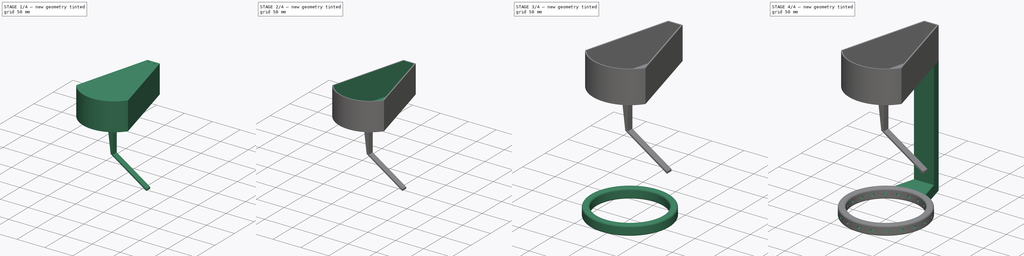
[diagram: build sequence overview — one tinted view per stage of 4, left to right]
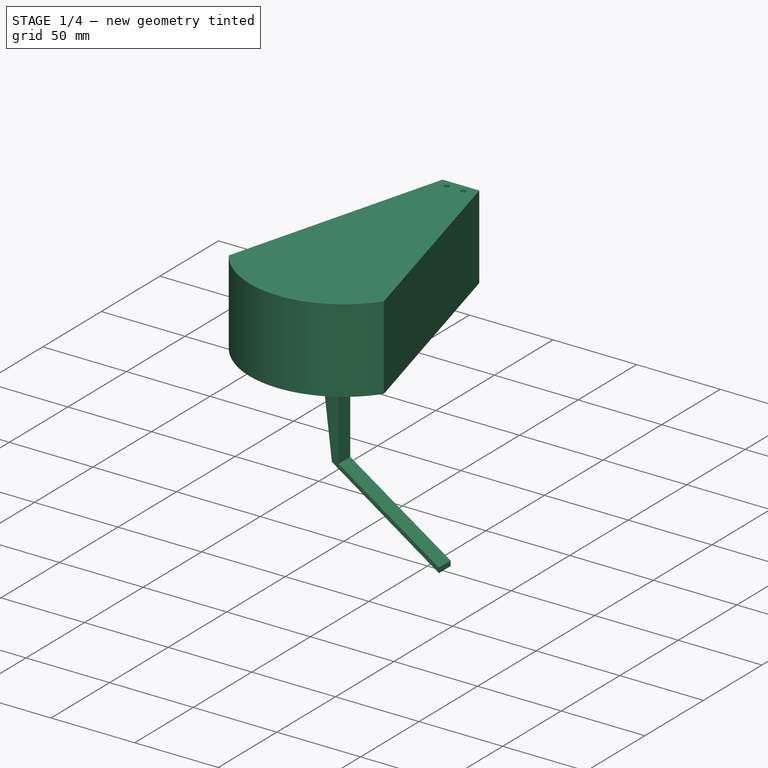
[diagram: stage 1 of 4 — iso view after this stage's code; geometry added in this stage tinted green]
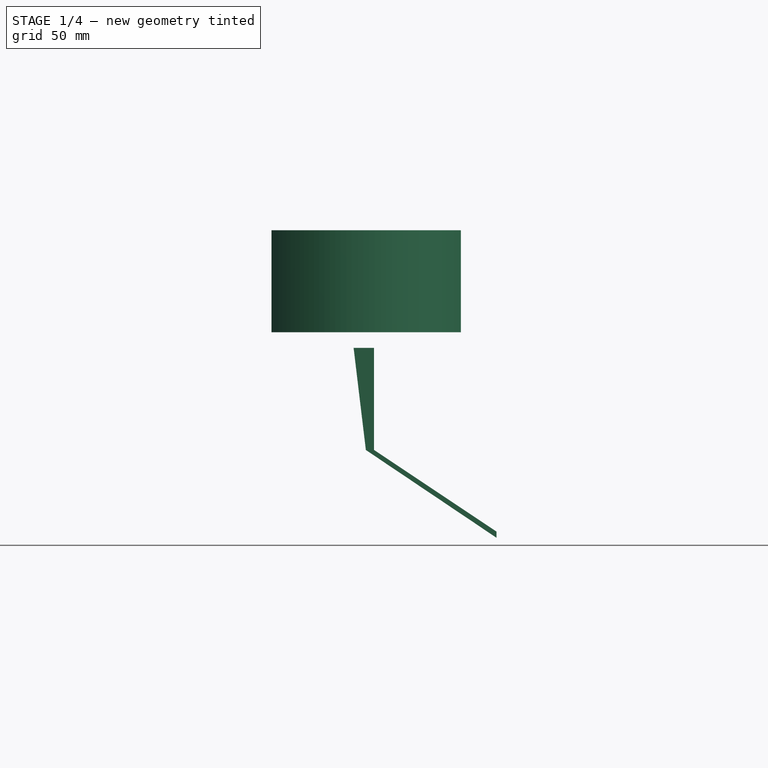
[diagram: stage 1 of 4 — front view after this stage's code; geometry added in this stage tinted green]
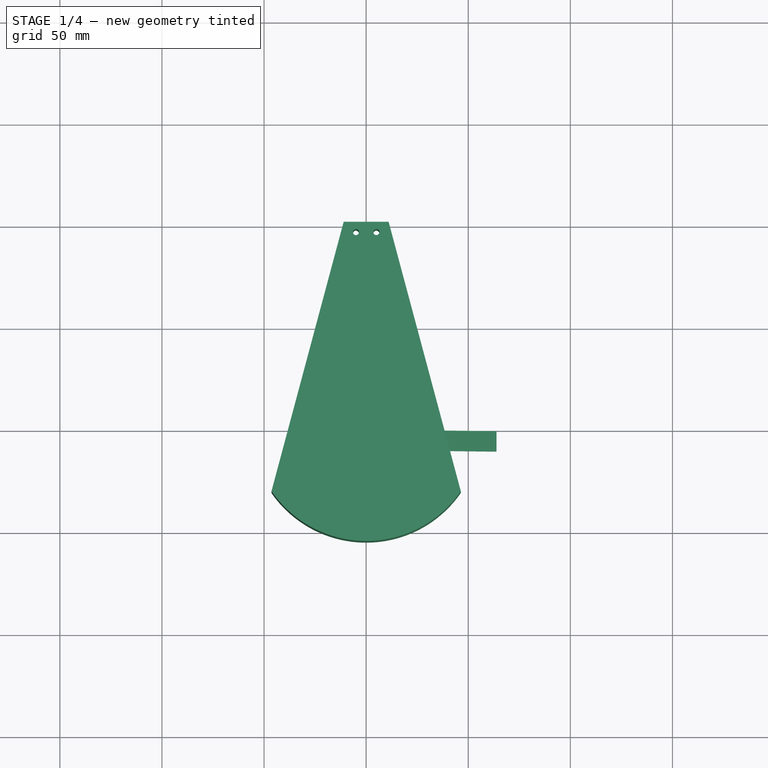
[diagram: stage 1 of 4 — top view after this stage's code; geometry added in this stage tinted green]
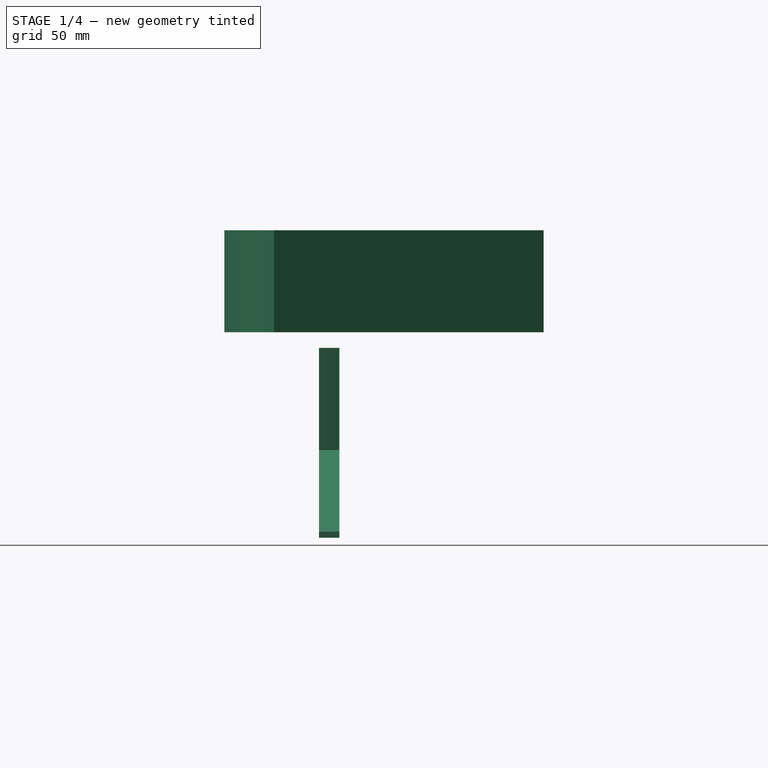
[diagram: stage 1 of 4 — right view after this stage's code; geometry added in this stage tinted green]
FCSTD DOCUMENT  (FreeCAD 0.19R24366 (Git))
Label: Singing Bowl Automata
License: All rights reserved
LicenseURL: http://en.wikipedia.org/wiki/All_rights_reserved
objects: Sketcher::SketchObject×12, PartDesign::Pocket×6, PartDesign::Pad×5, PartDesign::Body×3, PartDesign::Fillet×2, PartDesign::PolarPattern×1
note: 42 computed .brp shape members not serialized (recipe doc carries the construction recipe); baked Part::Feature solids carry a one-line shape summary decoded from their .brp

FEATURE [Sketcher::SketchObject] Sketch004
  FullyConstrained = true
  MapMode = 5
  Placement = pos=(0,0,180) rot=(0,0,1;0rad)
  Support = -> [Pad002]
FEATURE [PartDesign::Body] Body  label="Body Bottom"
  Group = -> [Sketch,Pad,Fillet,Fillet001,Sketch001,Pocket,PolarPattern,Sketch002,Pad001,Sketch003,Pad002,Sketch004]
  Origin = -> Origin
  Tip = -> Pad002
FEATURE [Sketcher::SketchObject] Sketch005  label="outer layer"
  AttachmentOffset = pos=(0,0,180) rot=(0,0,1;0rad)
  FullyConstrained = false
  MapMode = 5
  Placement = pos=(0,0,180) rot=(0,0,1;0rad)
  Support = -> [XY_Plane001]
  sketch-geometry (7):
    g0: GeomPoint X=-11 Y=100 Z=0
    g1: GeomPoint X=11 Y=100 Z=0
    g2: GeomPoint X=0 Y=100 Z=0
    g3: LineSegment StartX=-11 StartY=100 StartZ=0 EndX=-46.3693 EndY=-32 EndZ=0
    g4: LineSegment StartX=46.3693 StartY=-32 StartZ=0 EndX=11 EndY=100 EndZ=0
    g5: LineSegment StartX=11 StartY=100 StartZ=0 EndX=-11 EndY=100 EndZ=0
    g6: ArcOfCircle CenterX=0 CenterY=0 CenterZ=0 NormalX=0 NormalY=0 NormalZ=1 AngleXU=0 Radius=56.3393 StartAngle=3.74565 EndAngle=5.67913
  constraints (15):
    c: PointOnObject(g2,g-2)
    c: Coincident(g3,g0)
    c: Coincident(g4,g1)
    c: Coincident(g4,g5)
    c: Coincident(g5,g3)
    c: Horizontal(g5)
    c: Angle(g3,g5) = 1.8326
    c: Angle(g5,g4) = 1.8326
    c: DistanceX(g5,g5) = 22
    c: DistanceY(g-1,g3) = 100
    c: Coincident(g6,g-1)
    c: Coincident(g6,g3)
    c: DistanceY(g3,g3) = 132
    c: DistanceY(g4,g4) = 132
    c: Coincident(g4,g6)
FEATURE [PartDesign::Pad] Pad003
  Direction = (1,1,1)
  Length = 50
  Length2 = 100
  Profile = -> Sketch005
  Type = 0
FEATURE [Sketcher::SketchObject] Sketch006  label="back screw holes"
  FullyConstrained = false
  MapMode = 5
  Support = -> [XY_Plane001]
  sketch-geometry (2):
    g0: Circle CenterX=-5 CenterY=94.9671 CenterZ=0 NormalX=0 NormalY=0 NormalZ=1 AngleXU=0 Radius=1.5
    g1: Circle CenterX=5 CenterY=94.9671 CenterZ=0 NormalX=0 NormalY=0 NormalZ=1 AngleXU=0 Radius=1.5
  constraints (5):
    c: Radius(g0) = 1.5
    c: Radius(g1) = 1.5
    c: Horizontal(g0,g1)
    c: DistanceX(g0,g1) = 10
    c: DistanceX(g0,g-1) = 5
FEATURE [PartDesign::Pocket] Pocket001
  BaseFeature = -> Pad003
  Length = 5
  Length2 = 100
  Profile = -> Sketch006
  Reversed = true
  Type = 1
FEATURE [PartDesign::Body] Body001  label="Body Top"
  Group = -> [Sketch005,Pad003,Sketch006,Pocket001,Sketch007,Pocket002,Sketch008,Pocket003,Sketch009,Pocket004]
  Origin = -> Origin001
  Tip = -> Pocket004
FEATURE [Sketcher::SketchObject] Sketch010
  FullyConstrained = false
  MapMode = 5
  Placement = pos=(0,0,0) rot=(1,0,0;1.5708rad)
  Support = -> [XZ_Plane002]
  sketch-geometry (7):
    g0: GeomPoint X=3.86119 Y=172.366 Z=0
    g1: LineSegment StartX=3.86119 StartY=172.366 StartZ=0 EndX=3.86119 EndY=122.366 EndZ=0
    g2: LineSegment StartX=3.86119 StartY=122.366 StartZ=0 EndX=63.8612 EndY=82.3655 EndZ=0
    g3: LineSegment StartX=3.86119 StartY=172.366 StartZ=0 EndX=-6.13881 EndY=172.366 EndZ=0
    g4: LineSegment StartX=-6.13881 StartY=172.366 StartZ=0 EndX=-0.138805 EndY=122.366 EndZ=0
    g5: LineSegment StartX=-0.138805 StartY=122.366 StartZ=0 EndX=63.8612 EndY=79.3655 EndZ=0
    g6: LineSegment StartX=63.8612 StartY=79.3655 StartZ=0 EndX=63.8612 EndY=82.3655 EndZ=0
  constraints (17):
    c: Coincident(g1,g0)
    c: Vertical(g1)
    c: Coincident(g1,g2)
    c: DistanceY(g1,g1) = 50
    c: DistanceY(g2,g1) = 40
    c: DistanceX(g1,g2) = 60
    c: Coincident(g1,g3)
    c: Horizontal(g3)
    c: Coincident(g3,g4)
    c: Coincident(g4,g5)
    c: Coincident(g6,g5)
    c: Coincident(g6,g2)
    c: Vertical(g6)
    c: Horizontal(g4,g1)
    c: DistanceX(g3,g3) = 10
    c: DistanceY(g6,g6) = 3
    c: DistanceX(g4,g1) = 4
FEATURE [PartDesign::Pad] Pad004
  Direction = (1,1,1)
  Length = 10
  Length2 = 100
  Placement = pos=(0,0,0) rot=(1,0,0;1.5708rad)
  Profile = -> Sketch010
  Type = 0
FEATURE [Sketcher::SketchObject] Sketch011
  AttachmentOffset = pos=(0,-5,0) rot=(0,0,1;0rad)
  FullyConstrained = true
  MapMode = 5
  Placement = pos=(0,-5,0) rot=(0,0,1;0rad)
  Support = -> [XY_Plane002]
  sketch-geometry (1):
    g0: Circle CenterX=0 CenterY=0 CenterZ=0 NormalX=0 NormalY=0 NormalZ=1 AngleXU=0 Radius=3
  constraints (2):
    c: Coincident(g0,g-1)
    c: Radius(g0) = 3
FEATURE [PartDesign::Pocket] Pocket005
  BaseFeature = -> Pad004
  Length = 5
  Length2 = 100
  Placement = pos=(0,0,0) rot=(1,0,0;1.5708rad)
  Profile = -> Sketch011
  Reversed = true
  Type = 1
FEATURE [PartDesign::Body] Body002
  Group = -> [Sketch010,Pad004,Sketch011,Pocket005]
  Origin = -> Origin002
  Tip = -> Pocket005
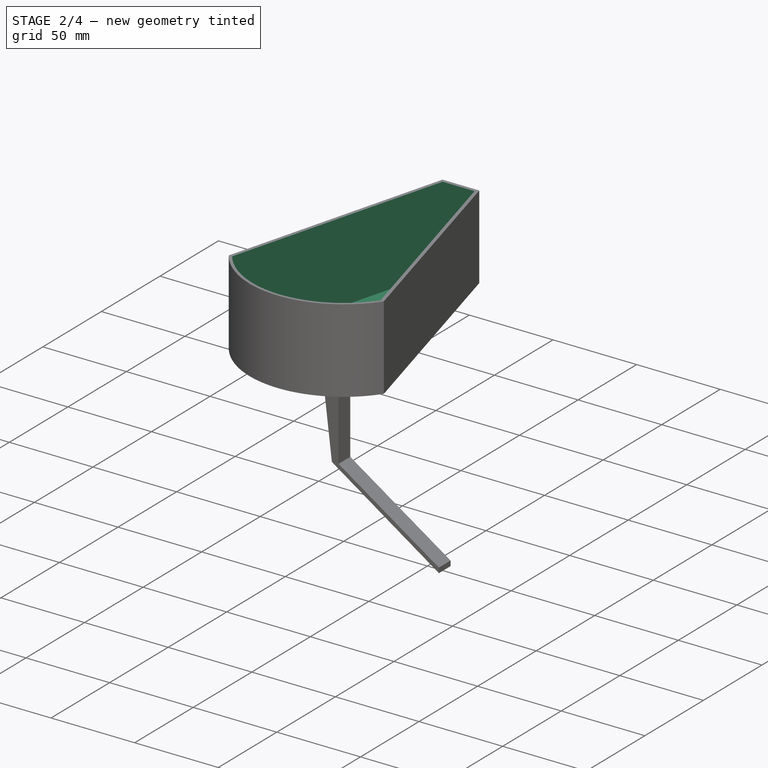
[diagram: stage 2 of 4 — iso view after this stage's code; geometry added in this stage tinted green]
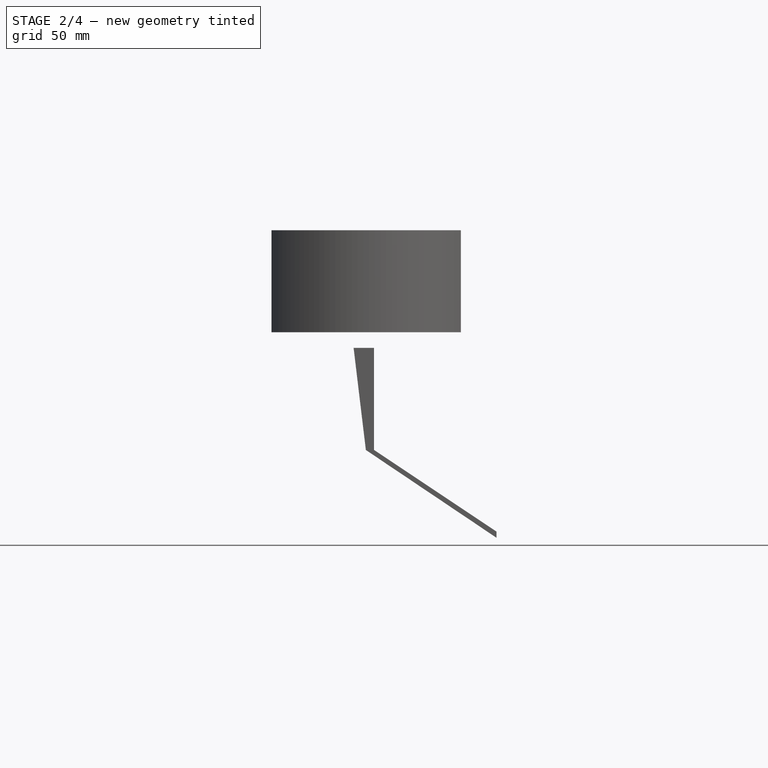
[diagram: stage 2 of 4 — front view after this stage's code; geometry added in this stage tinted green]
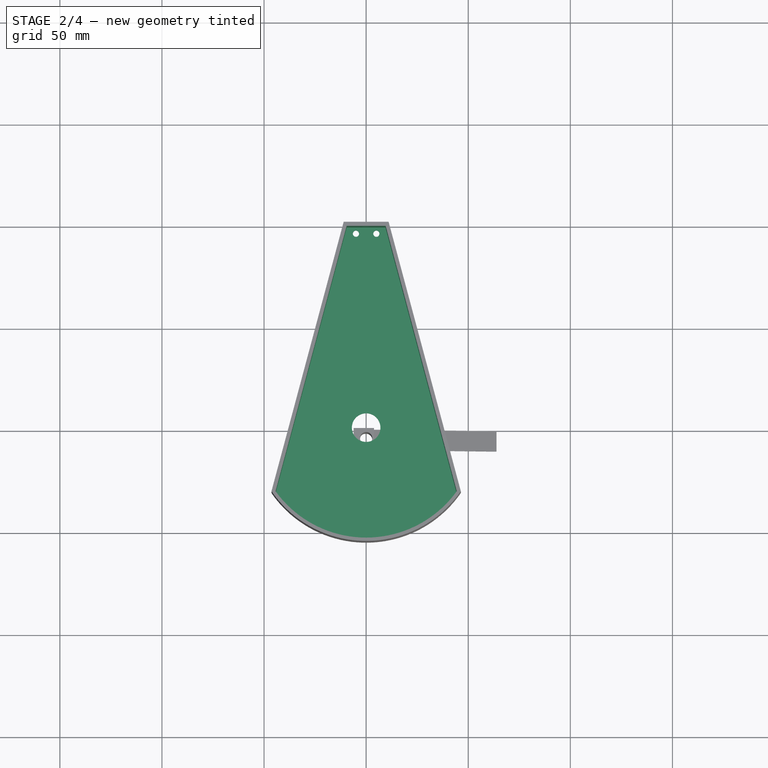
[diagram: stage 2 of 4 — top view after this stage's code; geometry added in this stage tinted green]
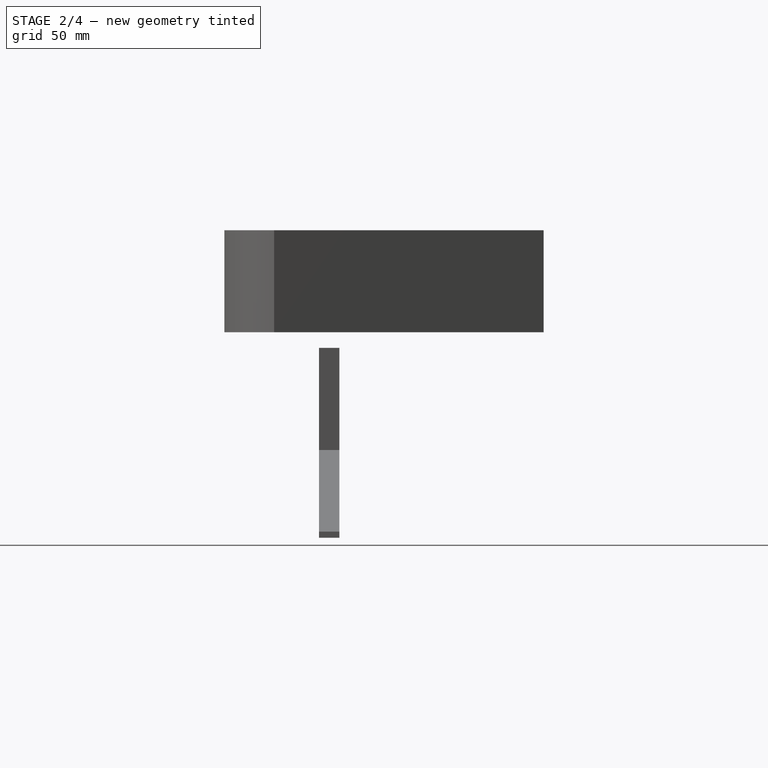
[diagram: stage 2 of 4 — right view after this stage's code; geometry added in this stage tinted green]
FEATURE [Sketcher::SketchObject] Sketch007  label="block cutter"
  AttachmentOffset = pos=(0,0,182) rot=(0,0,1;0rad)
  ExternalGeometry = -> [Pocket001]
  FullyConstrained = true
  MapMode = 5
  Placement = pos=(0,0,182) rot=(0,0,1;0rad)
  Support = -> [XY_Plane001]
  sketch-geometry (4):
    g0: LineSegment StartX=-9.5359 StartY=98 StartZ=0 EndX=9.5359 EndY=98 EndZ=0
    g1: LineSegment StartX=9.5359 StartY=98 StartZ=0 EndX=44.3693 EndY=-32 EndZ=0
    g2: LineSegment StartX=-44.3693 StartY=-32 StartZ=0 EndX=-9.5359 EndY=98 EndZ=0
    g3: ArcOfCircle CenterX=0 CenterY=0 CenterZ=0 NormalX=0 NormalY=0 NormalZ=1 AngleXU=0 Radius=54.705 StartAngle=3.76642 EndAngle=5.65836
  constraints (12):
    c: Horizontal(g0)
    c: Coincident(g0,g1)
    c: Coincident(g2,g0)
    c: Angle(g2,g0) = 1.8326
    c: Angle(g0,g1) = 1.8326
    c: Coincident(g3,g-1)
    c: Coincident(g3,g2)
    c: Coincident(g3,g1)
    c: DistanceY(g3,g0) = 98
    c: DistanceX(g-3,g2) = 2
    c: Horizontal(g1,g-4)
    c: DistanceX(g1,g-4) = 2
FEATURE [PartDesign::Pocket] Pocket002
  BaseFeature = -> Pocket001
  Length = 48
  Length2 = 100
  Profile = -> Sketch007
  Reversed = true
  Type = 0
FEATURE [Sketcher::SketchObject] Sketch008  label="wire hole"
  FullyConstrained = false
  MapMode = 5
  Placement = pos=(0,0,0) rot=(1,0,0;1.5708rad)
  Support = -> [XZ_Plane001]
  sketch-geometry (1):
    g0: Circle CenterX=0 CenterY=203.041 CenterZ=0 NormalX=0 NormalY=0 NormalZ=1 AngleXU=0 Radius=2
  constraints (2):
    c: PointOnObject(g0,g-2)
    c: Radius(g0) = 2
FEATURE [PartDesign::Pocket] Pocket003
  BaseFeature = -> Pocket002
  Length = 5
  Length2 = 100
  Profile = -> Sketch008
  Type = 1
FEATURE [Sketcher::SketchObject] Sketch009  label="motor hole"
  FullyConstrained = true
  MapMode = 5
  Support = -> [XY_Plane001]
  sketch-geometry (1):
    g0: Circle CenterX=0 CenterY=0 CenterZ=0 NormalX=0 NormalY=0 NormalZ=1 AngleXU=0 Radius=7
  constraints (2):
    c: Coincident(g0,g-1)
    c: Radius(g0) = 7
FEATURE [PartDesign::Pocket] Pocket004
  BaseFeature = -> Pocket003
  Length = 5
  Length2 = 100
  Profile = -> Sketch009
  Reversed = true
  Type = 1
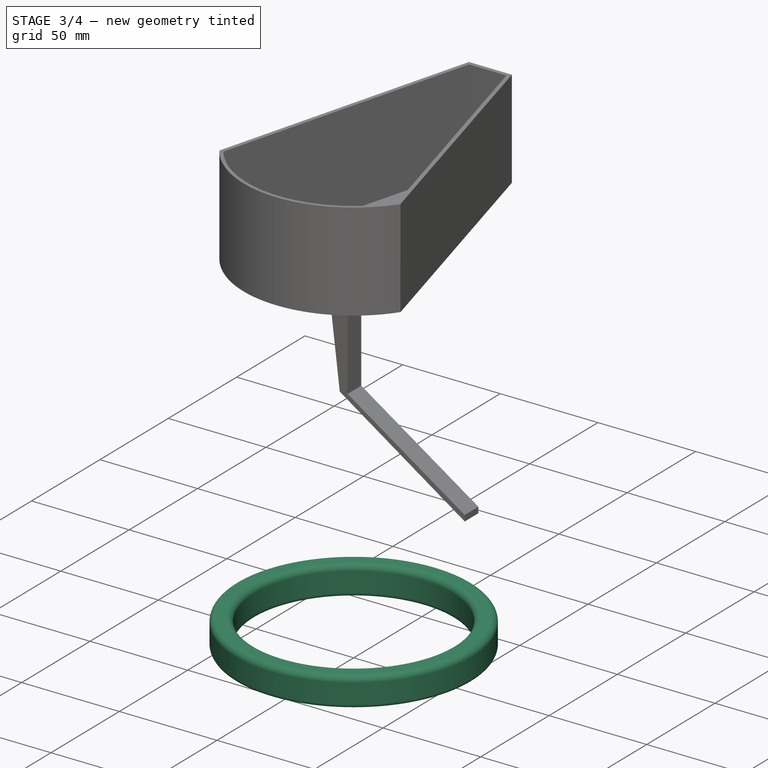
[diagram: stage 3 of 4 — iso view after this stage's code; geometry added in this stage tinted green]
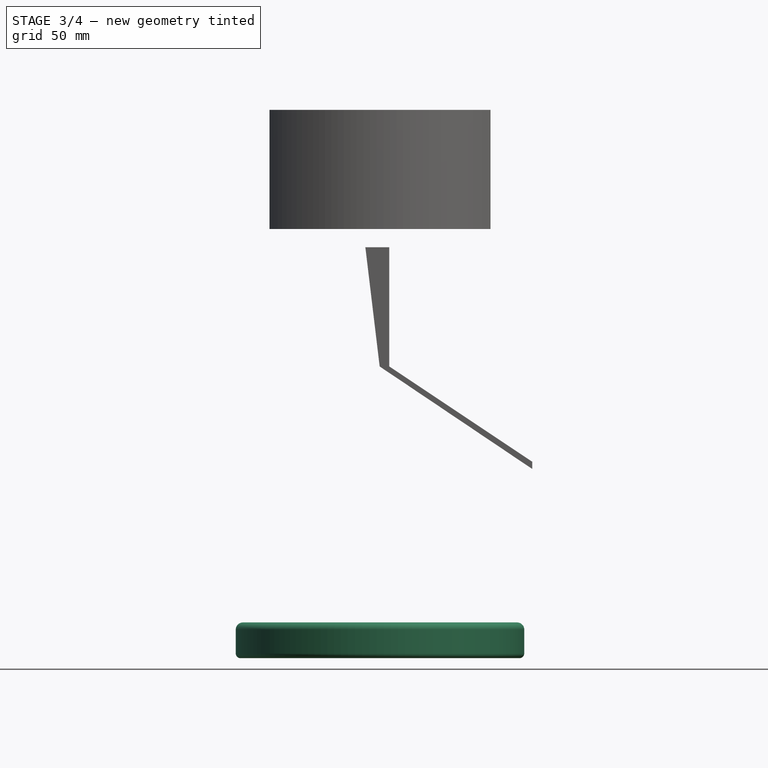
[diagram: stage 3 of 4 — front view after this stage's code; geometry added in this stage tinted green]
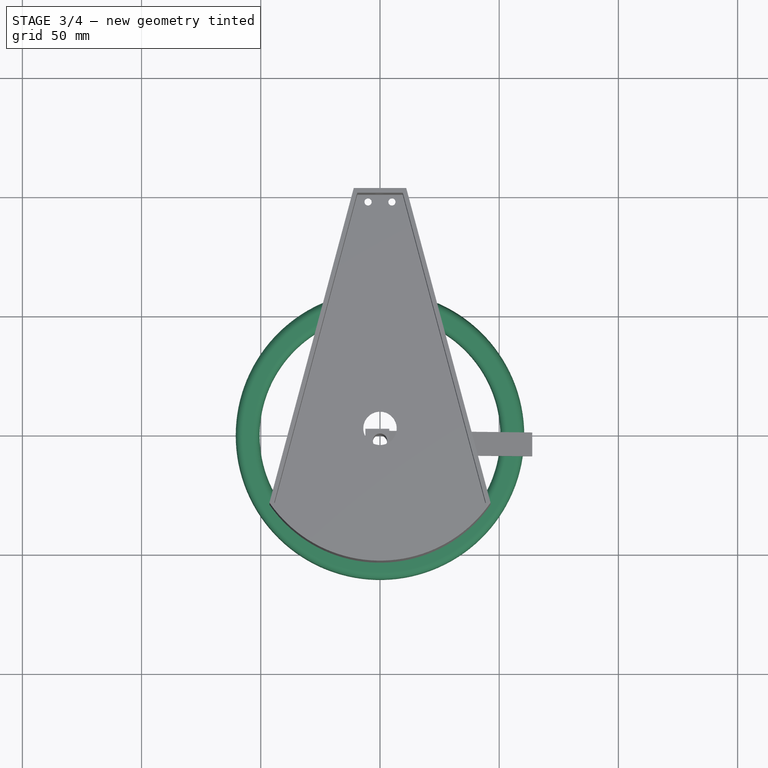
[diagram: stage 3 of 4 — top view after this stage's code; geometry added in this stage tinted green]
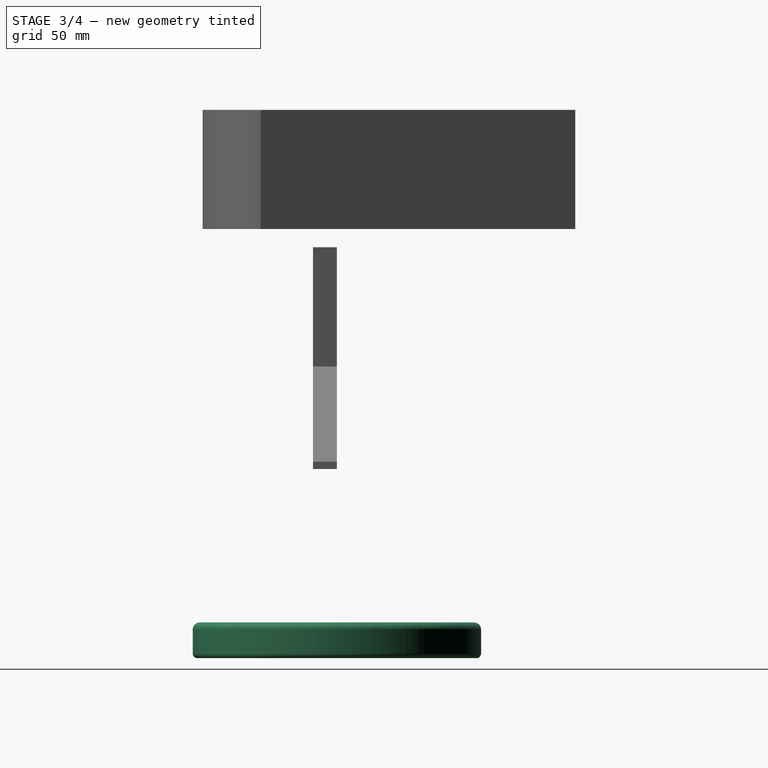
[diagram: stage 3 of 4 — right view after this stage's code; geometry added in this stage tinted green]
FEATURE [Sketcher::SketchObject] Sketch
  FullyConstrained = true
  MapMode = 5
  Support = -> [XY_Plane]
  sketch-geometry (2):
    g0: Circle CenterX=0 CenterY=0 CenterZ=0 NormalX=0 NormalY=0 NormalZ=1 AngleXU=0 Radius=50.5
    g1: Circle CenterX=0 CenterY=0 CenterZ=0 NormalX=0 NormalY=0 NormalZ=1 AngleXU=0 Radius=60.5
  constraints (4):
    c: Coincident(g0,g-1)
    c: Coincident(g1,g0)
    c: Radius(g0) = 50.5
    c: Radius(g1) = 60.5
FEATURE [PartDesign::Pad] Pad
  Direction = (1,1,1)
  Length = 15
  Length2 = 100
  Profile = -> Sketch
  Type = 0
FEATURE [PartDesign::Fillet] Fillet
  Base = -> Pad [Face4]
  BaseFeature = -> Pad
  Radius = 3
  SupportTransform = false
FEATURE [PartDesign::Fillet] Fillet001
  Base = -> Fillet [Face3]
  BaseFeature = -> Fillet
  Radius = 2
  SupportTransform = false
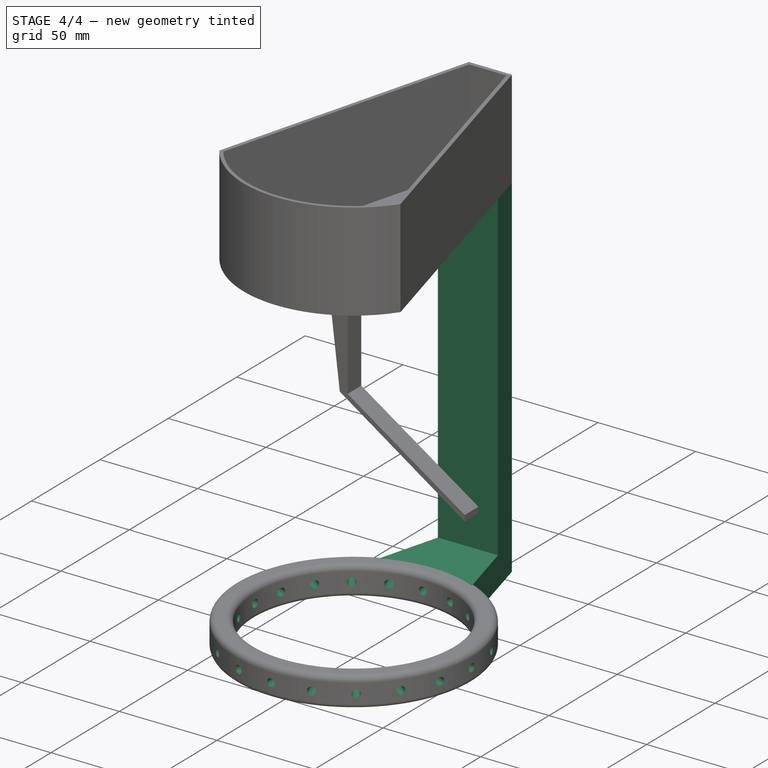
[diagram: stage 4 of 4 — iso view after this stage's code; geometry added in this stage tinted green]
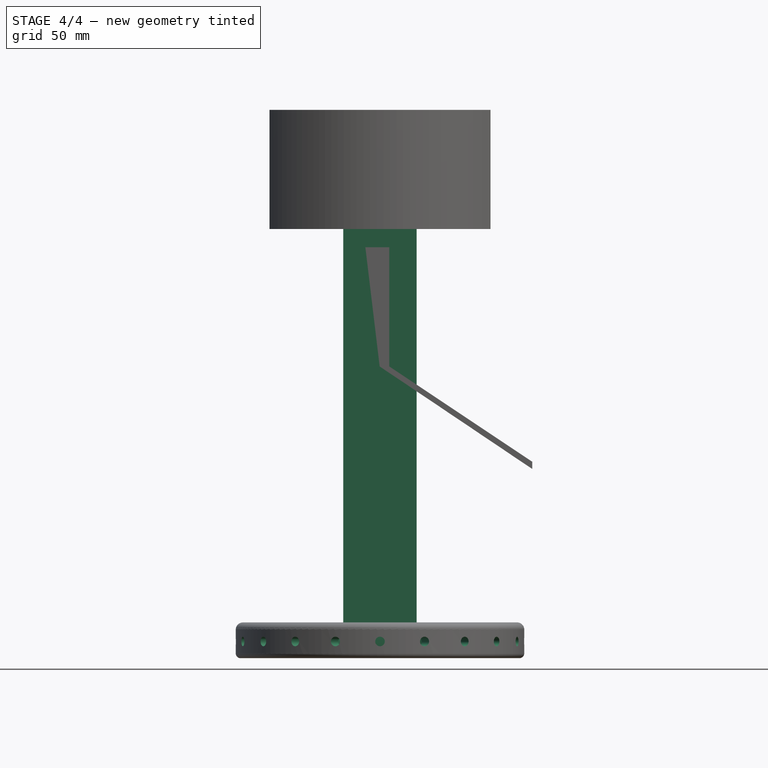
[diagram: stage 4 of 4 — front view after this stage's code; geometry added in this stage tinted green]
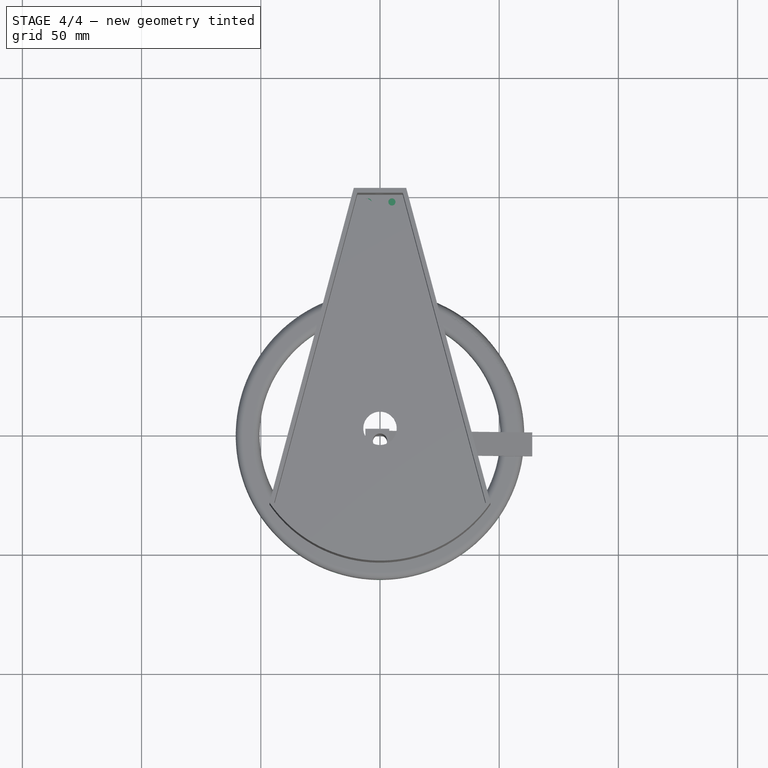
[diagram: stage 4 of 4 — top view after this stage's code; geometry added in this stage tinted green]
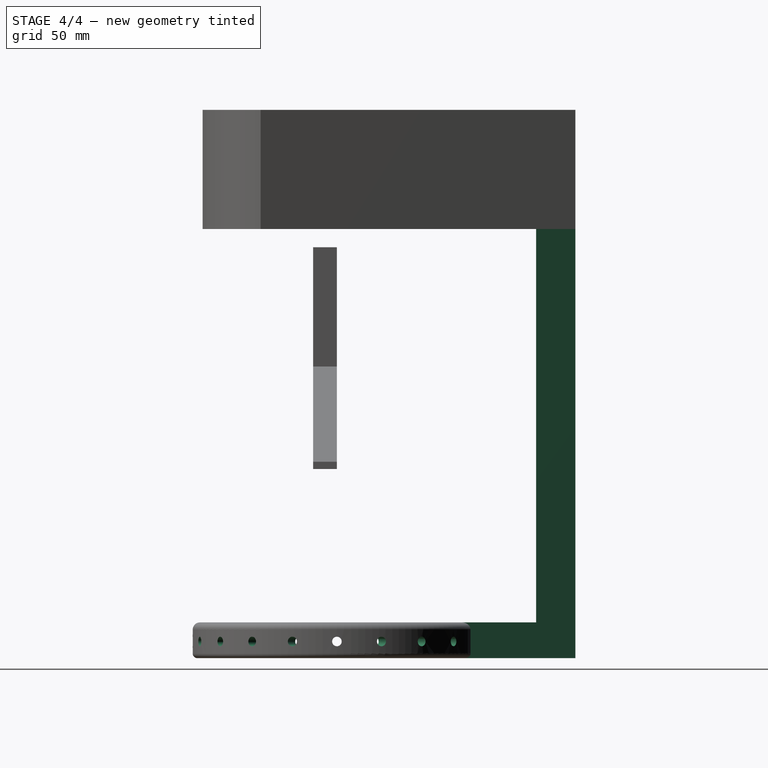
[diagram: stage 4 of 4 — right view after this stage's code; geometry added in this stage tinted green]
FEATURE [Sketcher::SketchObject] Sketch001
  FullyConstrained = true
  MapMode = 5
  Placement = pos=(0,0,0) rot=(1,0,0;1.5708rad)
  Support = -> [XZ_Plane]
  sketch-geometry (1):
    g0: Circle CenterX=0 CenterY=7 CenterZ=0 NormalX=0 NormalY=0 NormalZ=1 AngleXU=0 Radius=2
  constraints (3):
    c: PointOnObject(g0,g-2)
    c: Radius(g0) = 2
    c: DistanceY(g-1,g0) = 7
FEATURE [PartDesign::Pocket] Pocket
  BaseFeature = -> Fillet001
  Length = 50
  Length2 = 100
  Midplane = true
  Profile = -> Sketch001
  Type = 1
FEATURE [PartDesign::PolarPattern] PolarPattern
  Angle = 360
  Axis = -> Sketch001 [V_Axis]
  BaseFeature = -> Pocket
  Occurrences = 20
  Originals = -> [Pocket]
FEATURE [Sketcher::SketchObject] Sketch002
  FullyConstrained = false
  MapMode = 5
  Support = -> [XY_Plane]
  sketch-geometry (6):
    g0: LineSegment StartX=-10.9808 StartY=100 StartZ=0 EndX=10.9808 EndY=100 EndZ=0
    g1: LineSegment StartX=-10.9808 StartY=100 StartZ=0 EndX=-23.6975 EndY=52.5406 EndZ=0
    g2: LineSegment StartX=10.9808 StartY=100 StartZ=0 EndX=23.6975 EndY=52.5406 EndZ=0
    g3: GeomPoint X=3.14e-14 Y=100 Z=0
    g4: GeomPoint X=-0.003259 Y=52.5406 Z=0
    g5: ArcOfCircle CenterX=0 CenterY=0 CenterZ=0 NormalX=0 NormalY=0 NormalZ=1 AngleXU=0 Radius=57.6376 StartAngle=1.14708 EndAngle=1.99451
  constraints (11):
    c: Horizontal(g0)
    c: Coincident(g1,g0)
    c: Angle(g1,g0) = 1.8326
    c: Coincident(g2,g0)
    c: Angle(g0,g2) = 1.8326
    c: Equal(g2,g1)
    c: Symmetric(g0,g0,g3)
    c: DistanceY(g-1,g3) = 100
    c: Coincident(g5,g-1)
    c: Coincident(g5,g1)
    c: Coincident(g5,g2)
FEATURE [PartDesign::Pad] Pad001
  BaseFeature = -> PolarPattern
  Direction = (1,1,1)
  Length = 15
  Length2 = 100
  Profile = -> Sketch002
  Type = 0
FEATURE [Sketcher::SketchObject] Sketch003
  ExternalGeometry = -> [Pad001]
  FullyConstrained = false
  MapMode = 5
  Support = -> [XY_Plane]
  sketch-geometry (4):
    g0: LineSegment StartX=-10.9808 StartY=100 StartZ=0 EndX=10.9808 EndY=100 EndZ=0
    g1: LineSegment StartX=10.9808 StartY=100 StartZ=0 EndX=15.3855 EndY=83.5617 EndZ=0
    g2: LineSegment StartX=15.3855 StartY=83.5617 StartZ=0 EndX=-15.3855 EndY=83.5617 EndZ=0
    g3: LineSegment StartX=-15.3855 StartY=83.5617 StartZ=0 EndX=-10.9808 EndY=100 EndZ=0
  constraints (8):
    c: Coincident(g0,g1)
    c: Coincident(g1,g2)
    c: Horizontal(g2)
    c: Coincident(g2,g3)
    c: Coincident(g3,g0)
    c: Angle(g0,g1) = 1.8326
    c: Angle(g3,g0) = 1.8326
    c: Horizontal(g0)
FEATURE [PartDesign::Pad] Pad002
  BaseFeature = -> Pad001
  Direction = (1,1,1)
  Length = 180
  Length2 = 100
  Profile = -> Sketch003
  Type = 0
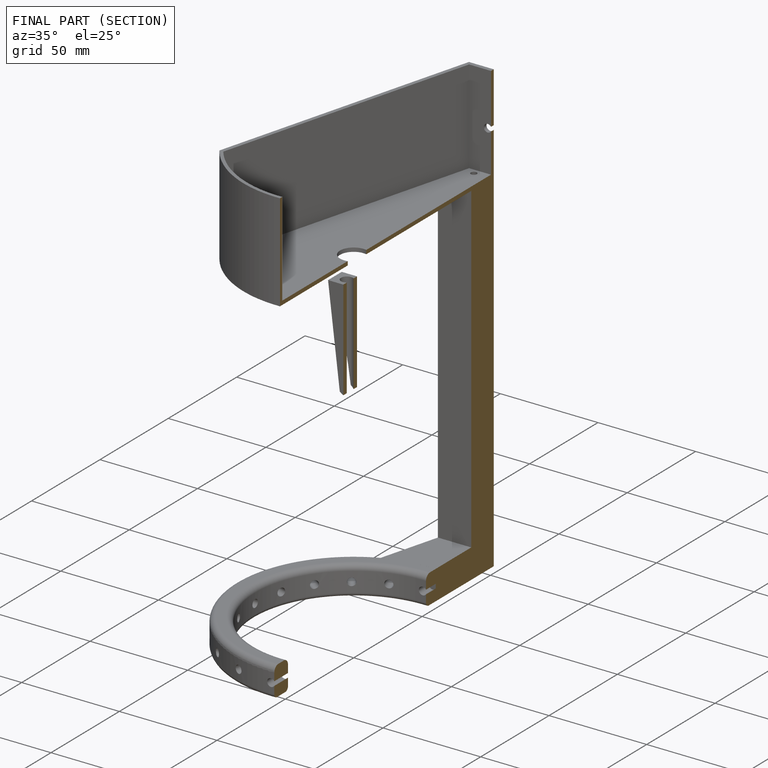
[diagram: finished part — half-section view (interior)]
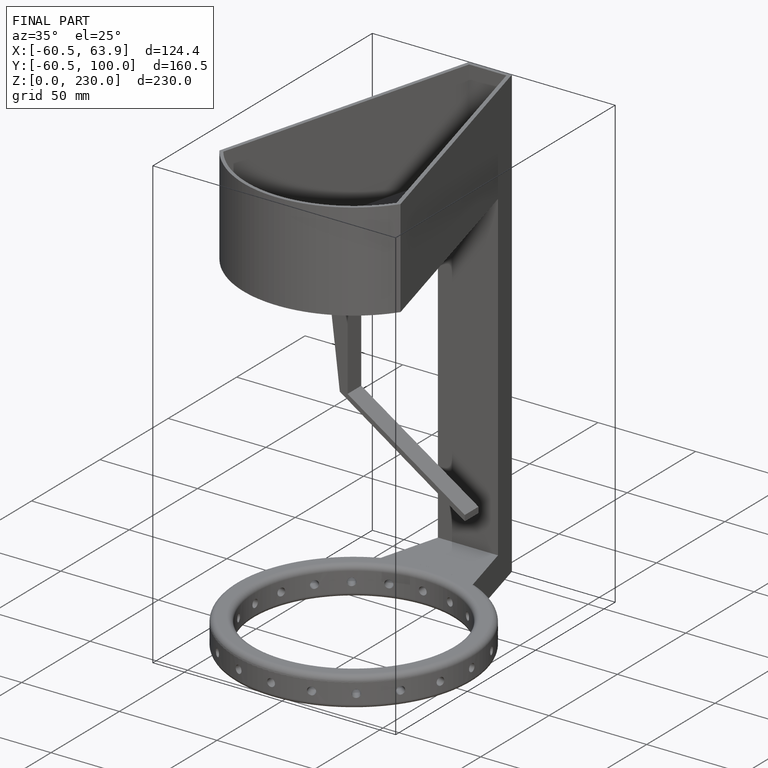
[diagram: finished part — iso view with bounding-box wireframe]
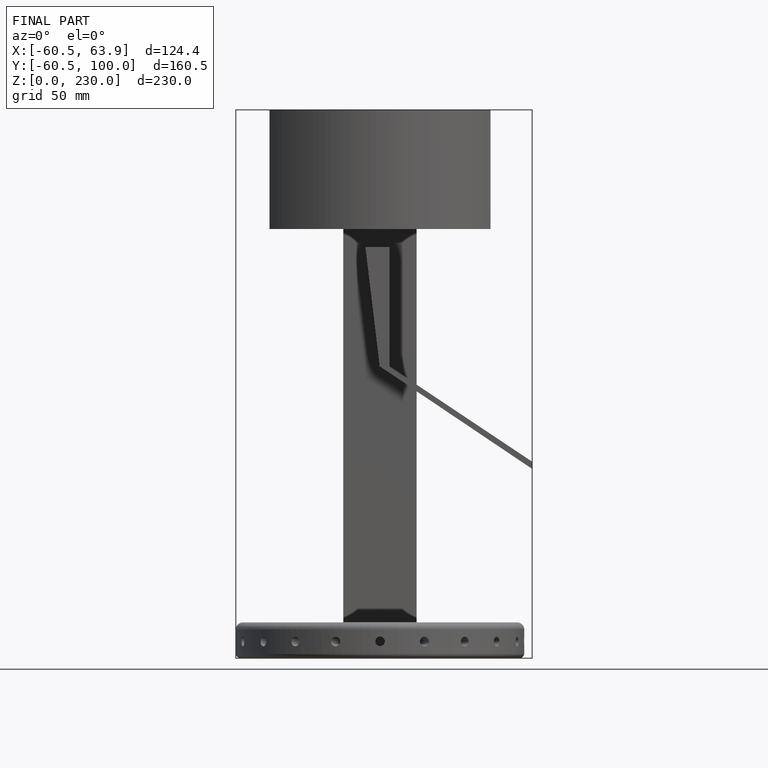
[diagram: finished part — front view with bounding-box wireframe]
